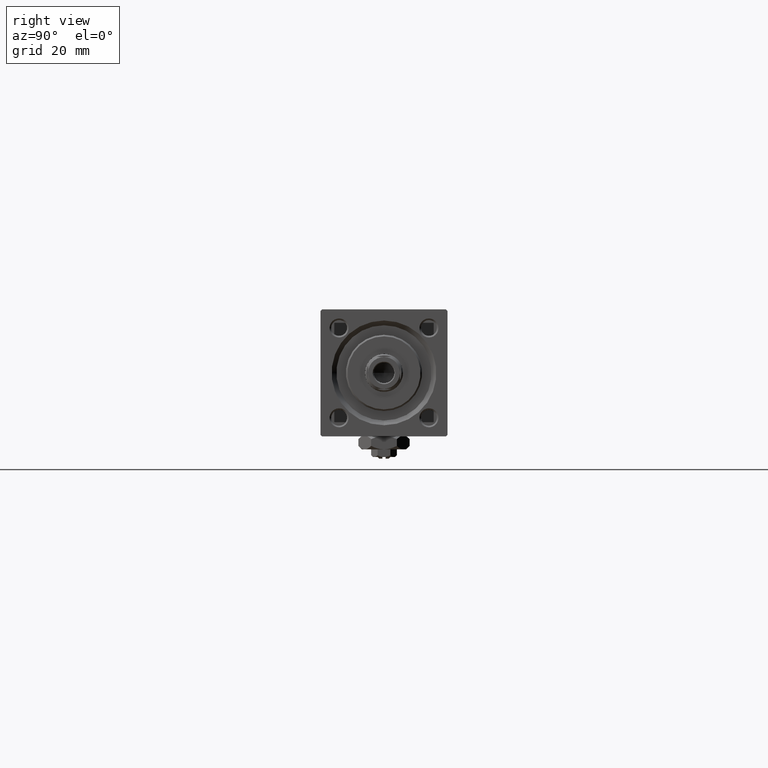
[diagram: clean part render]
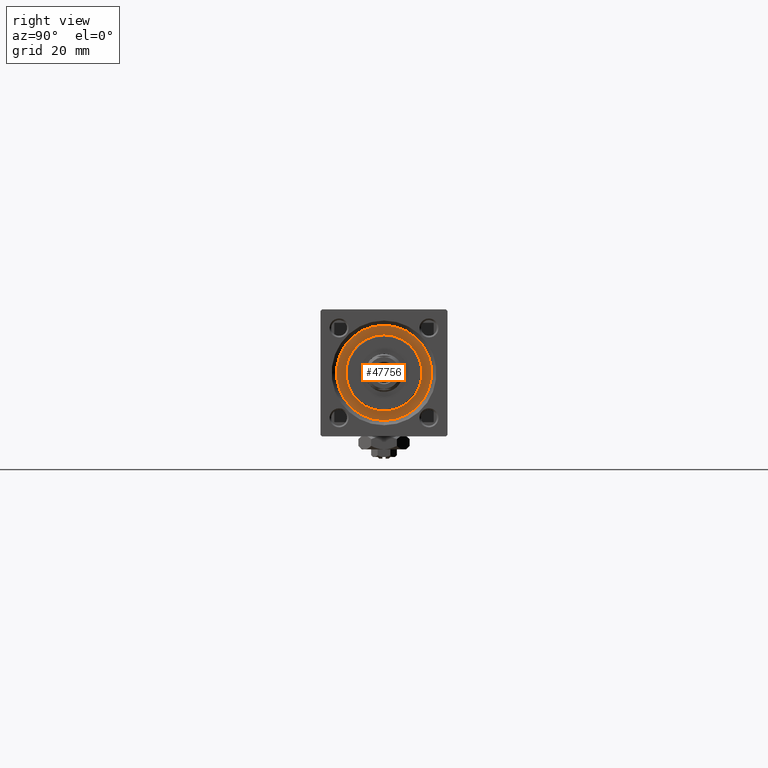
[diagram: same view with one face highlighted and labeled with its STEP entity id]
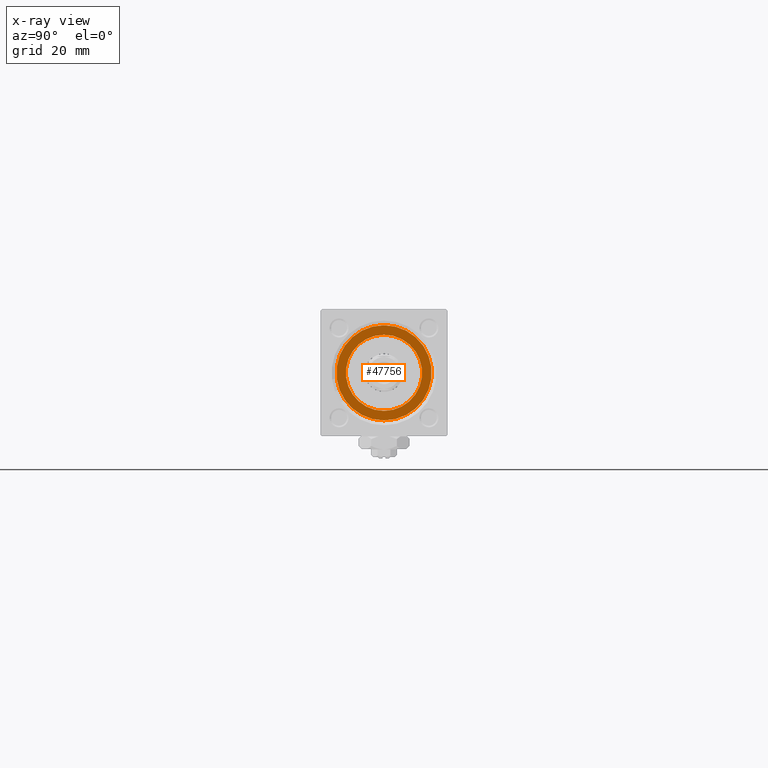
[diagram: x-ray of the same camera — body ghosted, the highlighted face saturated]
A machine part, right view. The second image highlights one B-rep face of the part: STEP entity #47756.
The next image is the same camera in x-ray: the body ghosted, the highlighted face saturated — about 0% of this face is hidden behind the body in this view.
In plain terms, the highlighted planar face has unit normal (1, 0, 0).
Its self-contained STEP definition (entity closure, byte-faithful):
#771 = CARTESIAN_POINT ( 'NONE',  ( 0.000000000000000000, 0.000000000000000000, 28.69999999999999929 ) ) ;
#826 = DIRECTION ( 'NONE',  ( 1.000000000000000000, 0.000000000000000000, 0.000000000000000000 ) ) ;
#925 = VERTEX_POINT ( 'NONE', #37397 ) ;
#4440 = CARTESIAN_POINT ( 'NONE',  ( 0.000000000000000000, 0.000000000000000000, 28.69999999999999929 ) ) ;
#5505 = ORIENTED_EDGE ( 'NONE', *, *, #17024, .T. ) ;
#5511 = DIRECTION ( 'NONE',  ( 0.000000000000000000, 0.000000000000000000, 1.000000000000000000 ) ) ;
#6664 = VERTEX_POINT ( 'NONE', #20457 ) ;
#12626 = DIRECTION ( 'NONE',  ( 1.000000000000000000, 0.000000000000000000, 0.000000000000000000 ) ) ;
#12689 = DIRECTION ( 'NONE',  ( 0.000000000000000000, 0.000000000000000000, 1.000000000000000000 ) ) ;
#14857 = CIRCLE ( 'NONE', #31728, 15.00000000000000000 ) ;
#15151 = AXIS2_PLACEMENT_3D ( 'NONE', #49809, #5511, #17891 ) ;
#16572 = FACE_OUTER_BOUND ( 'NONE', #38996, .T. ) ;
#17024 = EDGE_CURVE ( 'NONE', #925, #21929, #14857, .T. ) ;
#17696 = CIRCLE ( 'NONE', #15151, 12.00000000000000178 ) ;
#17891 = DIRECTION ( 'NONE',  ( 1.000000000000000000, 0.000000000000000000, 0.000000000000000000 ) ) ;
#19271 = AXIS2_PLACEMENT_3D ( 'NONE', #24272, #12689, #826 ) ;
#19459 = CARTESIAN_POINT ( 'NONE',  ( 15.00000000000000000, 1.836970198721029589E-15, 28.69999999999999929 ) ) ;
#20039 = AXIS2_PLACEMENT_3D ( 'NONE', #4440, #48750, #12626 ) ;
#20457 = CARTESIAN_POINT ( 'NONE',  ( 12.00000000000000178, 1.469576158976824144E-15, 28.69999999999999929 ) ) ;
#21929 = VERTEX_POINT ( 'NONE', #19459 ) ;
#23028 = DIRECTION ( 'NONE',  ( 1.000000000000000000, 0.000000000000000000, 0.000000000000000000 ) ) ;
#24272 = CARTESIAN_POINT ( 'NONE',  ( 0.000000000000000000, 0.000000000000000000, 28.69999999999999929 ) ) ;
#26545 = EDGE_CURVE ( 'NONE', #30845, #6664, #42055, .T. ) ;
#26969 = ORIENTED_EDGE ( 'NONE', *, *, #44111, .F. ) ;
#28289 = DIRECTION ( 'NONE',  ( 0.000000000000000000, 0.000000000000000000, 1.000000000000000000 ) ) ;
#28756 = AXIS2_PLACEMENT_3D ( 'NONE', #771, #29498, #45578 ) ;
#29498 = DIRECTION ( 'NONE',  ( 0.000000000000000000, 0.000000000000000000, 1.000000000000000000 ) ) ;
#30377 = EDGE_LOOP ( 'NONE', ( #42707, #26969 ) ) ;
#30845 = VERTEX_POINT ( 'NONE', #32362 ) ;
#31728 = AXIS2_PLACEMENT_3D ( 'NONE', #43853, #28289, #23028 ) ;
#32362 = CARTESIAN_POINT ( 'NONE',  ( -12.00000000000000178, 0.000000000000000000, 28.69999999999999929 ) ) ;
#35460 = EDGE_CURVE ( 'NONE', #21929, #925, #52054, .T. ) ;
#37397 = CARTESIAN_POINT ( 'NONE',  ( -15.00000000000000000, 0.000000000000000000, 28.69999999999999929 ) ) ;
#38996 = EDGE_LOOP ( 'NONE', ( #5505, #40307 ) ) ;
#40307 = ORIENTED_EDGE ( 'NONE', *, *, #35460, .T. ) ;
#42055 = CIRCLE ( 'NONE', #19271, 12.00000000000000178 ) ;
#42707 = ORIENTED_EDGE ( 'NONE', *, *, #26545, .F. ) ;
#43853 = CARTESIAN_POINT ( 'NONE',  ( 0.000000000000000000, 0.000000000000000000, 28.69999999999999929 ) ) ;
#44111 = EDGE_CURVE ( 'NONE', #6664, #30845, #17696, .T. ) ;
#45578 = DIRECTION ( 'NONE',  ( 1.000000000000000000, 0.000000000000000000, -0.000000000000000000 ) ) ;
#47756 = ADVANCED_FACE ( 'NONE', ( #49024, #16572 ), #48759, .T. ) ;
#48750 = DIRECTION ( 'NONE',  ( 0.000000000000000000, 0.000000000000000000, 1.000000000000000000 ) ) ;
#48759 = PLANE ( 'NONE',  #28756 ) ;
#49024 = FACE_BOUND ( 'NONE', #30377, .T. ) ;
#49809 = CARTESIAN_POINT ( 'NONE',  ( 0.000000000000000000, 0.000000000000000000, 28.69999999999999929 ) ) ;
#52054 = CIRCLE ( 'NONE', #20039, 15.00000000000000000 ) ;